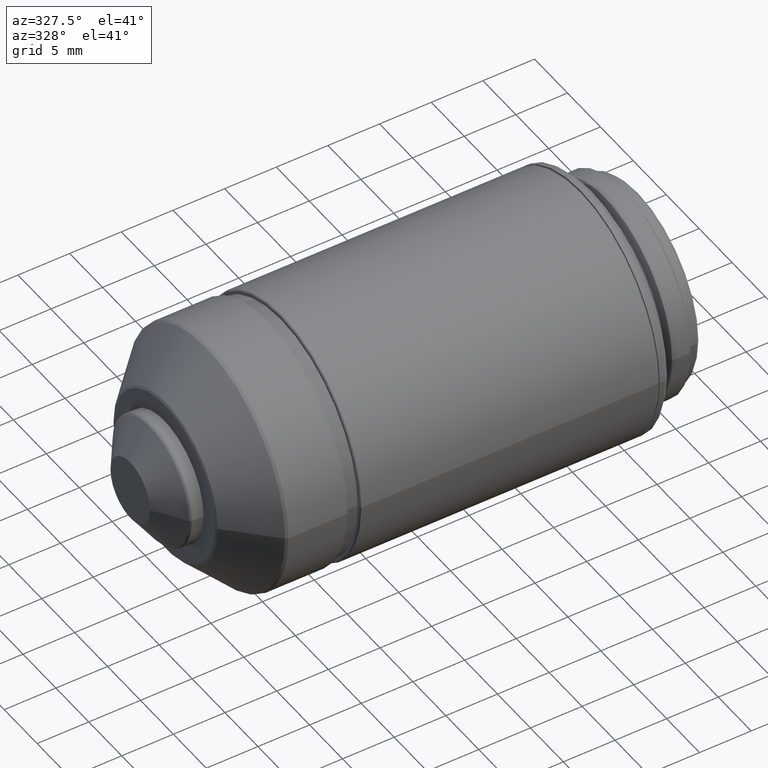
[diagram: clean part render]
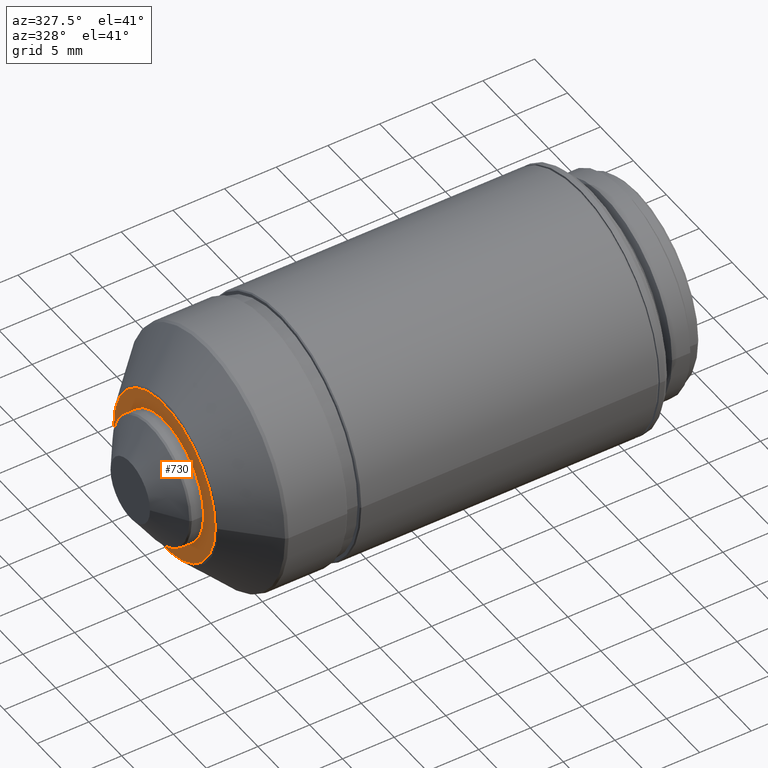
[diagram: same view with one face highlighted and labeled with its STEP entity id]
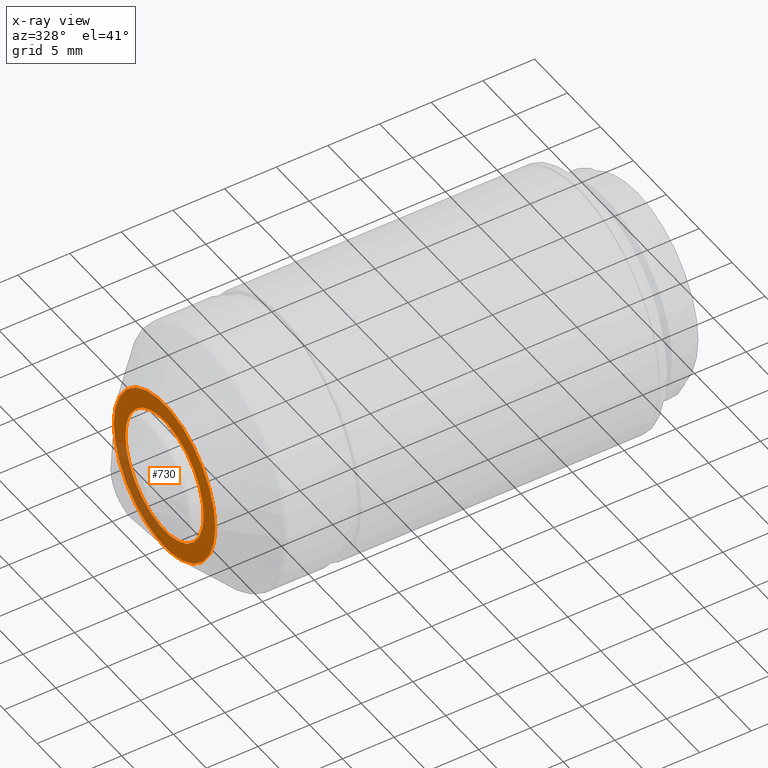
[diagram: x-ray of the same camera — body ghosted, the highlighted face saturated]
A machine part, auxiliary view. The second image highlights one B-rep face of the part: STEP entity #730.
The next image is the same camera in x-ray: the body ghosted, the highlighted face saturated — about 19% of this face is hidden behind the body in this view.
In plain terms, the highlighted planar face has unit normal (-1, 0, 0).
Its self-contained STEP definition (entity closure, byte-faithful):
#8 = FACE_OUTER_BOUND ( 'NONE', #813, .T. ) ;
#13 = PLANE ( 'NONE',  #549 ) ;
#19 = DIRECTION ( 'NONE',  ( 0.000000000000000000, 1.000000000000000000, 0.000000000000000000 ) ) ;
#70 = DIRECTION ( 'NONE',  ( 1.000000000000000000, 0.000000000000000000, 0.000000000000000000 ) ) ;
#95 = CARTESIAN_POINT ( 'NONE',  ( 3.699999613208079907, 7.700000000000000178, -9.429780353434609169E-16 ) ) ;
#103 = CIRCLE ( 'NONE', #1228, 7.700000000000000178 ) ;
#123 = EDGE_CURVE ( 'NONE', #606, #1246, #511, .T. ) ;
#131 = FACE_BOUND ( 'NONE', #620, .T. ) ;
#139 = CARTESIAN_POINT ( 'NONE',  ( 3.699999613208079907, -5.950000000000000178, -7.286648454926749993E-16 ) ) ;
#162 = CARTESIAN_POINT ( 'NONE',  ( 3.699999613208079907, 0.000000000000000000, 0.000000000000000000 ) ) ;
#220 = DIRECTION ( 'NONE',  ( 1.000000000000000000, 0.000000000000000000, 0.000000000000000000 ) ) ;
#272 = VERTEX_POINT ( 'NONE', #139 ) ;
#274 = CARTESIAN_POINT ( 'NONE',  ( 3.699999613208079907, 0.000000000000000000, 0.000000000000000000 ) ) ;
#330 = ORIENTED_EDGE ( 'NONE', *, *, #506, .F. ) ;
#393 = CIRCLE ( 'NONE', #854, 5.950000000000000178 ) ;
#464 = ORIENTED_EDGE ( 'NONE', *, *, #123, .F. ) ;
#506 = EDGE_CURVE ( 'NONE', #1246, #606, #103, .T. ) ;
#511 = CIRCLE ( 'NONE', #572, 7.700000000000000178 ) ;
#539 = ORIENTED_EDGE ( 'NONE', *, *, #1147, .T. ) ;
#549 = AXIS2_PLACEMENT_3D ( 'NONE', #706, #989, #794 ) ;
#572 = AXIS2_PLACEMENT_3D ( 'NONE', #596, #220, #1079 ) ;
#579 = EDGE_CURVE ( 'NONE', #272, #820, #393, .T. ) ;
#596 = CARTESIAN_POINT ( 'NONE',  ( 3.699999613208079907, 0.000000000000000000, 0.000000000000000000 ) ) ;
#606 = VERTEX_POINT ( 'NONE', #1039 ) ;
#620 = EDGE_LOOP ( 'NONE', ( #746, #539 ) ) ;
#706 = CARTESIAN_POINT ( 'NONE',  ( 3.699999613208079907, 6.825000000000000178, 0.000000000000000000 ) ) ;
#730 = ADVANCED_FACE ( 'NONE', ( #8, #131 ), #13, .T. ) ;
#746 = ORIENTED_EDGE ( 'NONE', *, *, #579, .T. ) ;
#763 = DIRECTION ( 'NONE',  ( 0.000000000000000000, 1.000000000000000000, 0.000000000000000000 ) ) ;
#794 = DIRECTION ( 'NONE',  ( 0.000000000000000000, 0.000000000000000000, 1.000000000000000000 ) ) ;
#795 = DIRECTION ( 'NONE',  ( 1.000000000000000000, 0.000000000000000000, 0.000000000000000000 ) ) ;
#813 = EDGE_LOOP ( 'NONE', ( #330, #464 ) ) ;
#820 = VERTEX_POINT ( 'NONE', #983 ) ;
#849 = DIRECTION ( 'NONE',  ( 1.000000000000000000, 0.000000000000000000, 0.000000000000000000 ) ) ;
#854 = AXIS2_PLACEMENT_3D ( 'NONE', #274, #70, #956 ) ;
#956 = DIRECTION ( 'NONE',  ( 0.000000000000000000, 1.000000000000000000, 0.000000000000000000 ) ) ;
#960 = CIRCLE ( 'NONE', #1109, 5.950000000000000178 ) ;
#983 = CARTESIAN_POINT ( 'NONE',  ( 3.699999613208079907, 5.950000000000000178, 0.000000000000000000 ) ) ;
#989 = DIRECTION ( 'NONE',  ( -1.000000000000000000, 0.000000000000000000, 0.000000000000000000 ) ) ;
#1039 = CARTESIAN_POINT ( 'NONE',  ( 3.699999613208079907, -7.700000000000000178, 0.000000000000000000 ) ) ;
#1079 = DIRECTION ( 'NONE',  ( 0.000000000000000000, 1.000000000000000000, 0.000000000000000000 ) ) ;
#1109 = AXIS2_PLACEMENT_3D ( 'NONE', #162, #849, #763 ) ;
#1147 = EDGE_CURVE ( 'NONE', #820, #272, #960, .T. ) ;
#1228 = AXIS2_PLACEMENT_3D ( 'NONE', #1270, #795, #19 ) ;
#1246 = VERTEX_POINT ( 'NONE', #95 ) ;
#1270 = CARTESIAN_POINT ( 'NONE',  ( 3.699999613208079907, 0.000000000000000000, 0.000000000000000000 ) ) ;